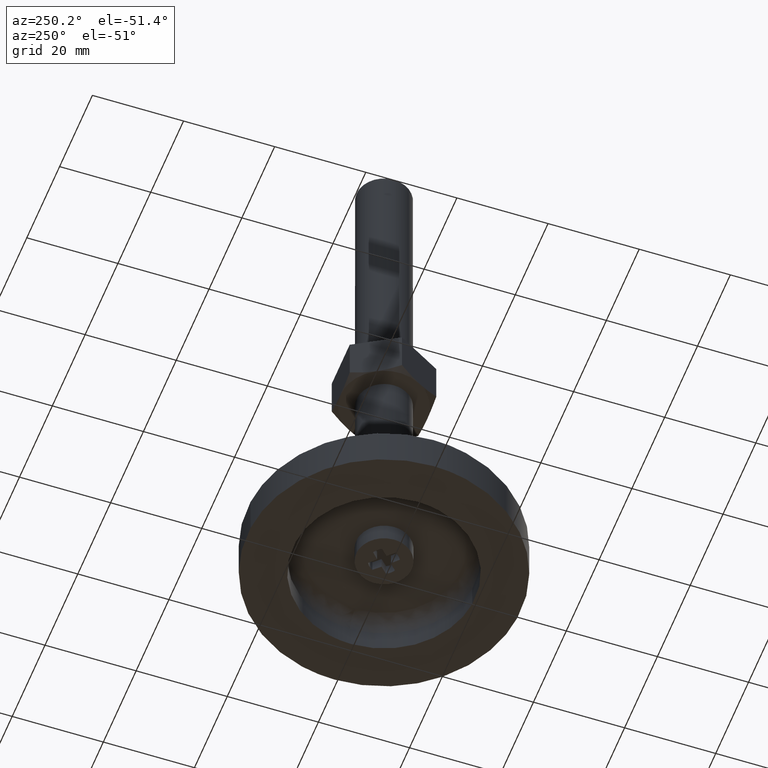
[diagram: clean part render]
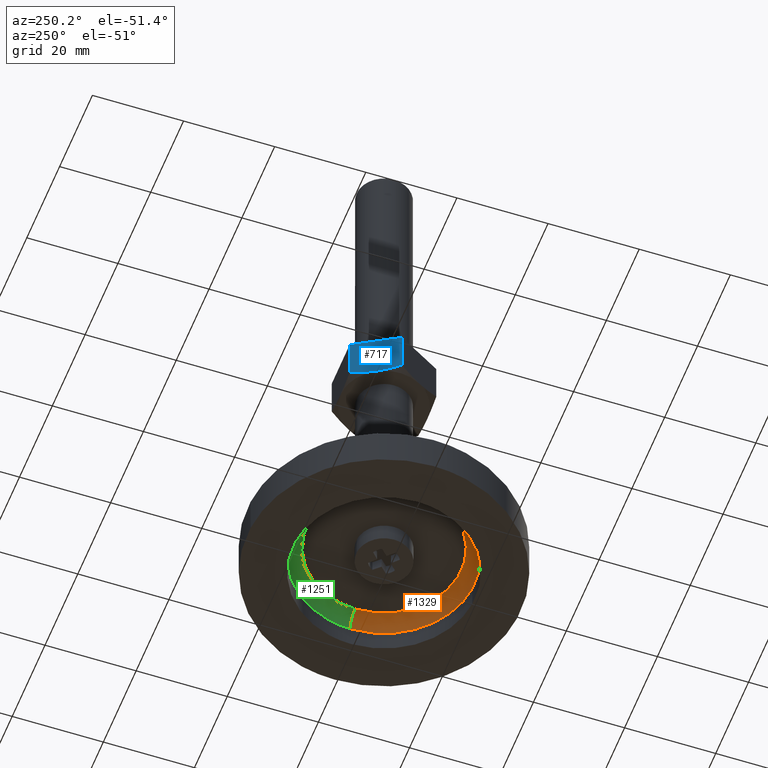
[diagram: same view with three faces highlighted in distinct colors, each labeled with its STEP entity id]
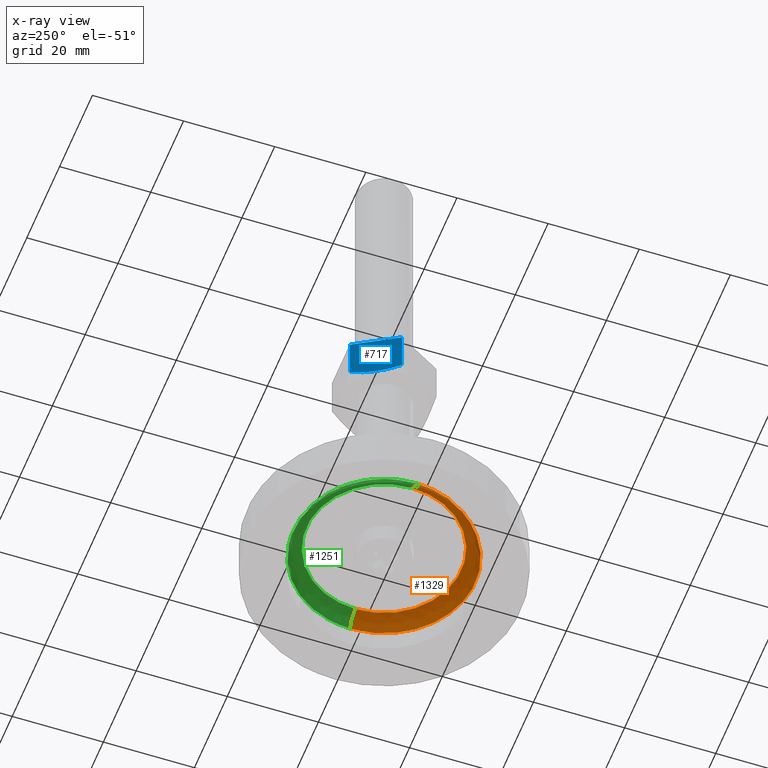
[diagram: x-ray of the same camera — body ghosted, the three highlighted faces saturated]
A machine part, auxiliary view with three faces highlighted in distinct colors.
The next image is the same camera in x-ray (body ghosted, the three faces saturated) — at least one of them is partly hidden behind the body in this view.
Their STEP definitions:

[orange] entity #1329 — the highlighted face is a freeform B-spline surface patch.
#1013=CARTESIAN_POINT('',(19.998420884075191,0.251320797757362,5.000000000000316));
#1014=VERTEX_POINT('',#1013);
#1037=CARTESIAN_POINT('',(1.569167552753556,-19.938347804950588,5.000000000000377));
#1038=VERTEX_POINT('',#1037);
#1044=CARTESIAN_POINT('',(20.0,0.0,5.0));
#1045=VERTEX_POINT('',#1044);
#1046=CARTESIAN_POINT('',(20.0,0.0,5.0));
#1047=CARTESIAN_POINT('',(19.999999999999794,-18.487823191310156,5.000000000000189));
#1048=CARTESIAN_POINT('',(1.569167552753556,-19.938347804950588,5.000000000000377));
#1056=(BOUNDED_CURVE()B_SPLINE_CURVE(2,(#1046,#1047,#1048),.UNSPECIFIED.,.F.,.U.)B_SPLINE_CURVE_WITH_KNOTS((3,3),(0.500000000000000,0.736331424111661),.UNSPECIFIED.)CURVE()GEOMETRIC_REPRESENTATION_ITEM()RATIONAL_B_SPLINE_CURVE((1.0,0.723120513940673,0.969723613862991))REPRESENTATION_ITEM(''));
#1057=EDGE_CURVE('',#1045,#1038,#1056,.T.);
#1059=CARTESIAN_POINT('',(19.998420884075188,0.251320797757362,5.000000000000316));
#1060=CARTESIAN_POINT('',(20.0,0.125665359882956,5.0));
#1061=CARTESIAN_POINT('',(20.0,0.0,5.0));
#1069=(BOUNDED_CURVE()B_SPLINE_CURVE(2,(#1059,#1060,#1061),.UNSPECIFIED.,.F.,.U.)B_SPLINE_CURVE_WITH_KNOTS((3,3),(0.497784295920934,0.500000000000000),.UNSPECIFIED.)CURVE()GEOMETRIC_REPRESENTATION_ITEM()RATIONAL_B_SPLINE_CURVE((0.994854295642184,0.997404141201377,1.0))REPRESENTATION_ITEM(''));
#1070=EDGE_CURVE('',#1014,#1045,#1069,.T.);
#1108=CARTESIAN_POINT('',(-19.998420884075191,-0.251320797757367,5.000000000000316));
#1109=VERTEX_POINT('',#1108);
#1123=CARTESIAN_POINT('',(1.569167552753556,-19.938347804950588,5.000000000000377));
#1124=CARTESIAN_POINT('',(0.785794925927531,-19.999999999994927,5.000000000000376));
#1125=CARTESIAN_POINT('',(-3.971997E-013,-19.999999999995030,5.000000000000374));
#1126=CARTESIAN_POINT('',(-19.750238598057273,-19.999999999997602,5.000000000000343));
#1127=CARTESIAN_POINT('',(-19.998420884075188,-0.251320797757367,5.000000000000316));
#1135=(BOUNDED_CURVE()B_SPLINE_CURVE(2,(#1123,#1124,#1125,#1126,#1127),.UNSPECIFIED.,.F.,.U.)B_SPLINE_CURVE_WITH_KNOTS((3,2,3),(0.736331424111661,0.750000000000000,0.997784295920934),.UNSPECIFIED.)CURVE()GEOMETRIC_REPRESENTATION_ITEM()RATIONAL_B_SPLINE_CURVE((0.969723613862991,0.983986267245874,1.0,0.709702639985171,0.994854295642184))REPRESENTATION_ITEM(''));
#1136=EDGE_CURVE('',#1038,#1109,#1135,.T.);
#1177=CARTESIAN_POINT('',(16.998657756280039,0.213622678592061,8.0));
#1178=VERTEX_POINT('',#1177);
#1179=CARTESIAN_POINT('',(16.998657756280046,0.213622678592061,8.0));
#1180=CARTESIAN_POINT('',(19.998420884072200,0.251320797969439,7.999999995177984));
#1181=CARTESIAN_POINT('',(19.998420884075180,0.251320797757362,5.000000000000316));
#1189=(BOUNDED_CURVE()B_SPLINE_CURVE(2,(#1179,#1180,#1181),.UNSPECIFIED.,.F.,.U.)B_SPLINE_CURVE_WITH_KNOTS((3,3),(-1.725134641633497,-0.274865356718293),.UNSPECIFIED.)CURVE()GEOMETRIC_REPRESENTATION_ITEM()RATIONAL_B_SPLINE_CURVE((0.883342149064947,0.624617224421656,0.883342149653021))REPRESENTATION_ITEM(''));
#1190=EDGE_CURVE('',#1178,#1014,#1189,.T.);
#1221=CARTESIAN_POINT('',(-16.998657756280039,-0.213622678592057,8.0));
#1222=VERTEX_POINT('',#1221);
#1236=CARTESIAN_POINT('',(-16.998657756280036,-0.213622678592057,8.0));
#1237=CARTESIAN_POINT('',(-19.998420884072207,-0.251320797969439,7.999999995177987));
#1238=CARTESIAN_POINT('',(-19.998420884075184,-0.251320797757367,5.000000000000316));
#1246=(BOUNDED_CURVE()B_SPLINE_CURVE(2,(#1236,#1237,#1238),.UNSPECIFIED.,.F.,.U.)B_SPLINE_CURVE_WITH_KNOTS((3,3),(-1.725134641633498,-0.274865356718294),.UNSPECIFIED.)CURVE()GEOMETRIC_REPRESENTATION_ITEM()RATIONAL_B_SPLINE_CURVE((0.883342149064947,0.624617224421656,0.883342149653021))REPRESENTATION_ITEM(''));
#1247=EDGE_CURVE('',#1222,#1109,#1246,.T.);
#1252=CARTESIAN_POINT('',(16.784163988320593,0.680396644449088,7.992738096477130));
#1253=CARTESIAN_POINT('',(16.787096264881157,0.447065772706241,7.992738096477130));
#1254=CARTESIAN_POINT('',(17.001064154956079,-16.579061635441072,7.992738096477130));
#1255=CARTESIAN_POINT('',(0.211001259757513,-16.790062895198570,7.992738096477130));
#1256=CARTESIAN_POINT('',(-16.579061635441057,-17.001064154956079,7.992738096477130));
#1257=CARTESIAN_POINT('',(-16.793029525512367,0.025063252902595,7.992738096477130));
#1258=CARTESIAN_POINT('',(-16.795961802069385,0.258394124363486,7.992738096477130));
#1259=CARTESIAN_POINT('',(20.223906212774583,0.819836956693232,8.232611430909151));
#1260=CARTESIAN_POINT('',(20.227439429334677,0.538687316475469,8.232611430909152));
#1261=CARTESIAN_POINT('',(20.485257843432137,-19.976770236771166,8.232611430909152));
#1262=CARTESIAN_POINT('',(0.254243803330488,-20.231014040101652,8.232611430909151));
#1263=CARTESIAN_POINT('',(-19.976770236771166,-20.485257843432137,8.232611430909152));
#1264=CARTESIAN_POINT('',(-20.234588650864271,0.030199709466724,8.232611430909151));
#1265=CARTESIAN_POINT('',(-20.238121867420091,0.311349349344748,8.232611430909152));
#1266=CARTESIAN_POINT('',(19.984135989565647,0.810117148460680,4.791388588279428));
#1267=CARTESIAN_POINT('',(19.987627317080452,0.532300757086187,4.791388588279428));
#1268=CARTESIAN_POINT('',(20.242389092265274,-19.739930003817619,4.791388588279428));
#1269=CARTESIAN_POINT('',(0.251229544223830,-19.991159548041452,4.791388588279428));
#1270=CARTESIAN_POINT('',(-19.739930003817619,-20.242389092265274,4.791388588279428));
#1271=CARTESIAN_POINT('',(-19.994691778998138,0.029841668294880,4.791388588279428));
#1272=CARTESIAN_POINT('',(-19.998183106508716,0.307658059333662,4.791388588279428));
#1280=(BOUNDED_SURFACE()B_SPLINE_SURFACE(2,2,((#1252,#1259,#1266),(#1253,#1260,#1267),(#1254,#1261,#1268),(#1255,#1262,#1269),(#1256,#1263,#1270),(#1257,#1264,#1271),(#1258,#1265,#1272)),.UNSPECIFIED.,.F.,.F.,.U.)B_SPLINE_SURFACE_WITH_KNOTS((3,1,2,1,3),(3,3),(0.0,0.662501062002794,33.787554126393779,66.912607190784755,67.575108251972807),(0.0,5.468189979762794),.UNSPECIFIED.)GEOMETRIC_REPRESENTATION_ITEM()RATIONAL_B_SPLINE_SURFACE(((0.921146729416461,0.604479481459989,0.921146741249095),(0.915813262253729,0.600979527150914,0.915813274017851),(0.643806437242182,0.422481857576905,0.643806445512228),(0.910479795090997,0.597479572841838,0.910479806786608),(0.643806437242182,0.422481857576905,0.643806445512228),(0.915813262247170,0.600979527146609,0.915813274011292),(0.921146729403343,0.604479481451381,0.921146741235977)))REPRESENTATION_ITEM('')SURFACE());
#1281=ORIENTED_EDGE('',*,*,#1136,.T.);
#1282=ORIENTED_EDGE('',*,*,#1247,.F.);
#1283=CARTESIAN_POINT('',(17.0,0.0,8.0));
#1284=VERTEX_POINT('',#1283);
#1285=CARTESIAN_POINT('',(17.0,0.0,8.0));
#1286=CARTESIAN_POINT('',(17.000139436908452,-1.108192906138005,7.999999999999995));
#1287=CARTESIAN_POINT('',(16.806283737882620,-3.082113008185723,8.000000000000007));
#1288=CARTESIAN_POINT('',(16.106522939235941,-5.591278196743474,8.000000000000007));
#1289=CARTESIAN_POINT('',(15.126395373659850,-7.888138709253417,7.999999999999980));
#1290=CARTESIAN_POINT('',(13.860626282431010,-9.966778980738532,8.000000000000005));
#1291=CARTESIAN_POINT('',(11.991418760882020,-12.159781957063769,8.000000000000036));
#1292=CARTESIAN_POINT('',(9.836189556051210,-13.974881559590820,7.999999999999905));
#1293=CARTESIAN_POINT('',(7.608038621683763,-15.258506107667840,8.000000000000222));
#1294=CARTESIAN_POINT('',(5.524650213408640,-16.118011658156611,7.999999999999830));
#1295=CARTESIAN_POINT('',(3.286619278757819,-16.750014890639829,8.000000000000252));
#1296=CARTESIAN_POINT('',(0.939297754841939,-17.031466534363130,7.999999999999651));
#1297=CARTESIAN_POINT('',(-1.487614867965952,-16.979911831448032,8.000000000000224));
#1298=CARTESIAN_POINT('',(-3.754837588813800,-16.645408954586401,7.999999999999942));
#1299=CARTESIAN_POINT('',(-6.379242660341415,-15.844487495338649,7.999999999999692));
#1300=CARTESIAN_POINT('',(-8.555871013651283,-14.754368438731730,8.000000000000679));
#1301=CARTESIAN_POINT('',(-10.699211137213670,-13.282405341217560,7.999999999999417));
#1302=CARTESIAN_POINT('',(-12.395246435862891,-11.735897478161700,8.000000000000332));
#1303=CARTESIAN_POINT('',(-14.240105055888661,-9.434220375885243,7.999999999999798));
#1304=CARTESIAN_POINT('',(-15.594014524220780,-6.999980612262529,8.000000000000503));
#1305=CARTESIAN_POINT('',(-16.688278587353029,-3.776856943495612,7.999999999998816));
#1306=CARTESIAN_POINT('',(-16.981983246235721,-1.564155911211339,8.000000000001952));
#1307=CARTESIAN_POINT('',(-16.998657756280039,-0.213622678592057,8.0));
#1308=B_SPLINE_CURVE_WITH_KNOTS('',3,(#1285,#1286,#1287,#1288,#1289,#1290,#1291,#1292,#1293,#1294,#1295,#1296,#1297,#1298,#1299,#1300,#1301,#1302,#1303,#1304,#1305,#1306,#1307),.UNSPECIFIED.,.F.,.U.,(4,1,1,1,1,1,1,1,1,1,1,1,1,1,1,1,1,1,1,1,4),(0.000000232260433,3.324560314812274,5.921914546155591,7.792006181880737,10.804929750579440,13.194491025955870,16.415208231103389,19.220336471628212,20.882631315009760,23.168292284748919,26.181244907533198,27.947305495157138,30.440824413000609,33.038117698147673,36.154960739121947,37.713364142081609,40.830192462621227,43.011980459283564,46.544387155995807,49.141698472185539,53.193529592743857),.UNSPECIFIED.);
#1309=EDGE_CURVE('',#1284,#1222,#1308,.T.);
#1310=ORIENTED_EDGE('',*,*,#1309,.F.);
#1311=CARTESIAN_POINT('',(16.998657756280039,0.213622678592061,8.0));
#1312=CARTESIAN_POINT('',(17.000000002410811,0.106815556149690,8.0));
#1313=CARTESIAN_POINT('',(17.0,0.0,8.0));
#1321=(BOUNDED_CURVE()B_SPLINE_CURVE(2,(#1311,#1312,#1313),.UNSPECIFIED.,.F.,.U.)B_SPLINE_CURVE_WITH_KNOTS((3,3),(0.497784295916405,0.500000000000000),.UNSPECIFIED.)CURVE()GEOMETRIC_REPRESENTATION_ITEM()RATIONAL_B_SPLINE_CURVE((0.994854295631762,0.997404141196072,1.0))REPRESENTATION_ITEM(''));
#1322=EDGE_CURVE('',#1178,#1284,#1321,.T.);
#1323=ORIENTED_EDGE('',*,*,#1322,.F.);
#1324=ORIENTED_EDGE('',*,*,#1190,.T.);
#1325=ORIENTED_EDGE('',*,*,#1070,.T.);
#1326=ORIENTED_EDGE('',*,*,#1057,.T.);
#1327=EDGE_LOOP('',(#1281,#1282,#1310,#1323,#1324,#1325,#1326));
#1328=FACE_OUTER_BOUND('',#1327,.T.);
#1329=ADVANCED_FACE('',(#1328),#1280,.F.);

[blue] entity #717 — the highlighted face is a freeform B-spline surface patch.
#194=CARTESIAN_POINT('',(-8.227240917976140,4.750000142069551,55.0));
#195=VERTEX_POINT('',#194);
#305=CARTESIAN_POINT('',(-5.484827000000000,9.500000000000108,55.848505520440000));
#306=VERTEX_POINT('',#305);
#321=CARTESIAN_POINT('',(-5.484827000000000,9.500000000000108,55.848505520440000));
#322=CARTESIAN_POINT('',(-5.932611144710593,8.724415173137592,55.589977235550599));
#323=CARTESIAN_POINT('',(-6.383660003523334,7.943175696034374,55.376903081825958));
#324=CARTESIAN_POINT('',(-7.067288495858541,6.759096509379010,55.155520413757330));
#325=CARTESIAN_POINT('',(-7.296343347196076,6.362361901164022,55.098136878830132));
#326=CARTESIAN_POINT('',(-7.757120668835380,5.564272233525692,55.020510672923990));
#327=CARTESIAN_POINT('',(-7.988845444250901,5.162913181528529,55.000300095702627));
#328=CARTESIAN_POINT('',(-8.223747173436712,4.756051484632068,55.000000850123591));
#329=CARTESIAN_POINT('',(-8.225493981276436,4.753025924946808,54.999999745958483));
#330=CARTESIAN_POINT('',(-8.227240917977483,4.750000142067210,54.999999762487597));
#331=B_SPLINE_CURVE_WITH_KNOTS('',3,(#321,#322,#323,#324,#325,#326,#327,#328,#329,#330),.UNSPECIFIED.,.F.,.U.,(4,2,2,2,4),(0.0,0.250000000000000,0.375000000000000,0.500000000000000,0.500936434345609),.UNSPECIFIED.);
#332=EDGE_CURVE('',#306,#195,#331,.T.);
#541=CARTESIAN_POINT('',(-10.969654999999999,7.479928E-016,55.848505615153002));
#542=VERTEX_POINT('',#541);
#543=CARTESIAN_POINT('',(-8.227240917976140,4.750000142069551,55.0));
#544=CARTESIAN_POINT('',(-8.342088961295458,4.551077511946305,55.000000849154112));
#545=CARTESIAN_POINT('',(-8.457493953636805,4.351190217897555,55.004845666648748));
#546=CARTESIAN_POINT('',(-8.689020001256656,3.950175372511586,55.024220156787280));
#547=CARTESIAN_POINT('',(-8.805251567163483,3.748856411166793,55.038873456895402));
#548=CARTESIAN_POINT('',(-9.152783160065761,3.146914083609458,55.096876893532617));
#549=CARTESIAN_POINT('',(-9.382917362980763,2.748309983773956,55.154303399235019));
#550=CARTESIAN_POINT('',(-10.069222746897561,1.559594285267157,55.376053544231290));
#551=CARTESIAN_POINT('',(-10.521312667914209,0.776551635678468,55.589655049033823));
#552=CARTESIAN_POINT('',(-10.969655000000030,-4.500579E-014,55.848505615152682));
#553=B_SPLINE_CURVE_WITH_KNOTS('',3,(#543,#544,#545,#546,#547,#548,#549,#550,#551,#552),.UNSPECIFIED.,.F.,.U.,(4,2,2,2,4),(0.500936434345609,0.562500000000000,0.625000000000000,0.750000000000000,1.0),.UNSPECIFIED.);
#554=EDGE_CURVE('',#195,#542,#553,.T.);
#580=CARTESIAN_POINT('',(-10.969654999999999,0.0,65.0));
#581=VERTEX_POINT('',#580);
#608=CARTESIAN_POINT('',(-5.484827000000000,9.500000000000108,65.0));
#609=VERTEX_POINT('',#608);
#615=CARTESIAN_POINT('',(-10.969654999999999,0.0,65.0));
#616=CARTESIAN_POINT('',(-5.484827000000000,9.500000000000108,65.0));
#617=QUASI_UNIFORM_CURVE('',1,(#615,#616),.UNSPECIFIED.,.F.,.U.);
#618=EDGE_CURVE('',#581,#609,#617,.T.);
#692=CARTESIAN_POINT('',(-5.484827000000000,9.500000000000108,65.0));
#693=CARTESIAN_POINT('',(-5.484827000000000,9.500000000000108,55.848505520440000));
#694=QUASI_UNIFORM_CURVE('',1,(#692,#693),.UNSPECIFIED.,.F.,.U.);
#695=EDGE_CURVE('',#609,#306,#694,.T.);
#701=CARTESIAN_POINT('',(-5.210859852030658,9.974524981587273,54.500500019381938));
#702=CARTESIAN_POINT('',(-11.243622295083890,-0.474525236397018,54.500500019381938));
#703=CARTESIAN_POINT('',(-5.210859852030658,9.974524981587273,65.499500248838970));
#704=CARTESIAN_POINT('',(-11.243622295083890,-0.474525236397018,65.499500248838970));
#705=B_SPLINE_SURFACE_WITH_KNOTS('',1,1,((#701,#703),(#702,#704)),.UNSPECIFIED.,.F.,.F.,.U.,(2,2),(2,2),(0.0,12.065524155720350),(0.0,10.999000229457030),.UNSPECIFIED.);
#706=ORIENTED_EDGE('',*,*,#695,.T.);
#707=ORIENTED_EDGE('',*,*,#332,.T.);
#708=ORIENTED_EDGE('',*,*,#554,.T.);
#709=CARTESIAN_POINT('',(-10.969654999999999,0.0,65.0));
#710=CARTESIAN_POINT('',(-10.969654999999999,7.479928E-016,55.848505615153002));
#711=QUASI_UNIFORM_CURVE('',1,(#709,#710),.UNSPECIFIED.,.F.,.U.);
#712=EDGE_CURVE('',#581,#542,#711,.T.);
#713=ORIENTED_EDGE('',*,*,#712,.F.);
#714=ORIENTED_EDGE('',*,*,#618,.T.);
#715=EDGE_LOOP('',(#706,#707,#708,#713,#714));
#716=FACE_OUTER_BOUND('',#715,.T.);
#717=ADVANCED_FACE('',(#716),#705,.T.);

[green] entity #1251 — the highlighted face is a freeform B-spline surface patch.
#1011=CARTESIAN_POINT('',(-1.569167552753556,19.938347804950588,5.000000000000377));
#1012=VERTEX_POINT('',#1011);
#1013=CARTESIAN_POINT('',(19.998420884075191,0.251320797757362,5.000000000000316));
#1014=VERTEX_POINT('',#1013);
#1015=CARTESIAN_POINT('',(-1.569167552753556,19.938347804950588,5.000000000000377));
#1016=CARTESIAN_POINT('',(-0.785794925927533,19.999999999994916,5.000000000000375));
#1017=CARTESIAN_POINT('',(3.942101E-013,19.999999999995019,5.000000000000373));
#1018=CARTESIAN_POINT('',(19.750238598057273,19.999999999997602,5.000000000000343));
#1019=CARTESIAN_POINT('',(19.998420884075188,0.251320797757362,5.000000000000316));
#1027=(BOUNDED_CURVE()B_SPLINE_CURVE(2,(#1015,#1016,#1017,#1018,#1019),.UNSPECIFIED.,.F.,.U.)B_SPLINE_CURVE_WITH_KNOTS((3,2,3),(0.236331424111661,0.250000000000000,0.497784295920934),.UNSPECIFIED.)CURVE()GEOMETRIC_REPRESENTATION_ITEM()RATIONAL_B_SPLINE_CURVE((0.969723613862991,0.983986267245874,1.0,0.709702639985171,0.994854295642184))REPRESENTATION_ITEM(''));
#1028=EDGE_CURVE('',#1012,#1014,#1027,.T.);
#1093=CARTESIAN_POINT('',(-20.0,0.0,5.0));
#1094=VERTEX_POINT('',#1093);
#1095=CARTESIAN_POINT('',(-20.0,0.0,5.0));
#1096=CARTESIAN_POINT('',(-19.999999999999794,18.487823191310156,5.000000000000187));
#1097=CARTESIAN_POINT('',(-1.569167552753556,19.938347804950588,5.000000000000377));
#1105=(BOUNDED_CURVE()B_SPLINE_CURVE(2,(#1095,#1096,#1097),.UNSPECIFIED.,.F.,.U.)B_SPLINE_CURVE_WITH_KNOTS((3,3),(0.0,0.236331424111661),.UNSPECIFIED.)CURVE()GEOMETRIC_REPRESENTATION_ITEM()RATIONAL_B_SPLINE_CURVE((1.0,0.723120513940673,0.969723613862991))REPRESENTATION_ITEM(''));
#1106=EDGE_CURVE('',#1094,#1012,#1105,.T.);
#1108=CARTESIAN_POINT('',(-19.998420884075191,-0.251320797757367,5.000000000000316));
#1109=VERTEX_POINT('',#1108);
#1110=CARTESIAN_POINT('',(-19.998420884075188,-0.251320797757367,5.000000000000316));
#1111=CARTESIAN_POINT('',(-20.0,-0.125665359882956,5.0));
#1112=CARTESIAN_POINT('',(-20.0,0.0,5.0));
#1120=(BOUNDED_CURVE()B_SPLINE_CURVE(2,(#1110,#1111,#1112),.UNSPECIFIED.,.F.,.U.)B_SPLINE_CURVE_WITH_KNOTS((3,3),(0.997784295920934,1.0),.UNSPECIFIED.)CURVE()GEOMETRIC_REPRESENTATION_ITEM()RATIONAL_B_SPLINE_CURVE((0.994854295642184,0.997404141201377,1.0))REPRESENTATION_ITEM(''));
#1121=EDGE_CURVE('',#1109,#1094,#1120,.T.);
#1145=CARTESIAN_POINT('',(-16.784163988320593,-0.680396644449069,7.992738096477130));
#1146=CARTESIAN_POINT('',(-16.787096264881153,-0.447065772706233,7.992738096477130));
#1147=CARTESIAN_POINT('',(-17.001064154956094,16.579061635441057,7.992738096477130));
#1148=CARTESIAN_POINT('',(-0.211001259757515,16.790062895198570,7.992738096477130));
#1149=CARTESIAN_POINT('',(16.579061635441057,17.001064154956094,7.992738096477130));
#1150=CARTESIAN_POINT('',(16.793029525512363,-0.025063252902597,7.992738096477130));
#1151=CARTESIAN_POINT('',(16.795961802069392,-0.258394124363493,7.992738096477129));
#1152=CARTESIAN_POINT('',(-20.223906212774590,-0.819836956693209,8.232611430909149));
#1153=CARTESIAN_POINT('',(-20.227439429334680,-0.538687316475459,8.232611430909151));
#1154=CARTESIAN_POINT('',(-20.485257843432141,19.976770236771166,8.232611430909152));
#1155=CARTESIAN_POINT('',(-0.254243803330490,20.231014040101652,8.232611430909151));
#1156=CARTESIAN_POINT('',(19.976770236771159,20.485257843432141,8.232611430909152));
#1157=CARTESIAN_POINT('',(20.234588650864268,-0.030199709466727,8.232611430909151));
#1158=CARTESIAN_POINT('',(20.238121867420098,-0.311349349344756,8.232611430909149));
#1159=CARTESIAN_POINT('',(-19.984135989565651,-0.810117148460658,4.791388588279427));
#1160=CARTESIAN_POINT('',(-19.987627317080459,-0.532300757086177,4.791388588279428));
#1161=CARTESIAN_POINT('',(-20.242389092265292,19.739930003817619,4.791388588279428));
#1162=CARTESIAN_POINT('',(-0.251229544223833,19.991159548041452,4.791388588279428));
#1163=CARTESIAN_POINT('',(19.739930003817619,20.242389092265292,4.791388588279428));
#1164=CARTESIAN_POINT('',(19.994691778998135,-0.029841668294883,4.791388588279428));
#1165=CARTESIAN_POINT('',(19.998183106508723,-0.307658059333670,4.791388588279429));
#1173=(BOUNDED_SURFACE()B_SPLINE_SURFACE(2,2,((#1145,#1152,#1159),(#1146,#1153,#1160),(#1147,#1154,#1161),(#1148,#1155,#1162),(#1149,#1156,#1163),(#1150,#1157,#1164),(#1151,#1158,#1165)),.UNSPECIFIED.,.F.,.F.,.U.)B_SPLINE_SURFACE_WITH_KNOTS((3,1,2,1,3),(3,3),(0.0,0.662501062002764,33.787554126393772,66.912607190784755,67.575108251972821),(0.0,5.468189979762788),.UNSPECIFIED.)GEOMETRIC_REPRESENTATION_ITEM()RATIONAL_B_SPLINE_SURFACE(((0.921146729416461,0.604479481459989,0.921146741249094),(0.915813262253729,0.600979527150914,0.915813274017851),(0.643806437242182,0.422481857576905,0.643806445512228),(0.910479795090997,0.597479572841838,0.910479806786608),(0.643806437242182,0.422481857576905,0.643806445512228),(0.915813262247170,0.600979527146610,0.915813274011292),(0.921146729403343,0.604479481451381,0.921146741235977)))REPRESENTATION_ITEM('')SURFACE());
#1174=ORIENTED_EDGE('',*,*,#1121,.T.);
#1175=ORIENTED_EDGE('',*,*,#1106,.T.);
#1176=ORIENTED_EDGE('',*,*,#1028,.T.);
#1177=CARTESIAN_POINT('',(16.998657756280039,0.213622678592061,8.0));
#1178=VERTEX_POINT('',#1177);
#1179=CARTESIAN_POINT('',(16.998657756280046,0.213622678592061,8.0));
#1180=CARTESIAN_POINT('',(19.998420884072200,0.251320797969439,7.999999995177984));
#1181=CARTESIAN_POINT('',(19.998420884075180,0.251320797757362,5.000000000000316));
#1189=(BOUNDED_CURVE()B_SPLINE_CURVE(2,(#1179,#1180,#1181),.UNSPECIFIED.,.F.,.U.)B_SPLINE_CURVE_WITH_KNOTS((3,3),(-1.725134641633497,-0.274865356718293),.UNSPECIFIED.)CURVE()GEOMETRIC_REPRESENTATION_ITEM()RATIONAL_B_SPLINE_CURVE((0.883342149064947,0.624617224421656,0.883342149653021))REPRESENTATION_ITEM(''));
#1190=EDGE_CURVE('',#1178,#1014,#1189,.T.);
#1191=ORIENTED_EDGE('',*,*,#1190,.F.);
#1192=CARTESIAN_POINT('',(-17.0,0.0,8.0));
#1193=VERTEX_POINT('',#1192);
#1194=CARTESIAN_POINT('',(-17.0,0.0,8.0));
#1195=CARTESIAN_POINT('',(-17.000105604672711,1.038938880135991,8.000000000000009));
#1196=CARTESIAN_POINT('',(-16.828025025385649,2.908967571575650,7.999999999999919));
#1197=CARTESIAN_POINT('',(-16.210931219974182,5.260018905645230,8.000000000000082));
#1198=CARTESIAN_POINT('',(-15.377275774536949,7.353887868896937,7.999999999999988));
#1199=CARTESIAN_POINT('',(-14.353755285425850,9.208934029262272,7.999999999999948));
#1200=CARTESIAN_POINT('',(-12.796230802875881,11.293580345176570,8.000000000000092));
#1201=CARTESIAN_POINT('',(-11.059292150451460,12.999216577709410,7.999999999999933));
#1202=CARTESIAN_POINT('',(-8.890403058736240,14.559163793837429,8.000000000000046));
#1203=CARTESIAN_POINT('',(-6.609464182957949,15.746463777943321,8.000000000000016));
#1204=CARTESIAN_POINT('',(-4.197493562023425,16.532086340391029,8.000000000000140));
#1205=CARTESIAN_POINT('',(-1.942719425949241,16.929159089066950,7.999999999999769));
#1206=CARTESIAN_POINT('',(0.586208772718293,17.069043883565289,8.000000000000226));
#1207=CARTESIAN_POINT('',(3.112558321656771,16.790388543121789,7.999999999999975));
#1208=CARTESIAN_POINT('',(5.886155361099678,16.017409839924088,7.999999999999903));
#1209=CARTESIAN_POINT('',(7.853591696284147,15.135262488287641,8.000000000000226));
#1210=CARTESIAN_POINT('',(9.918206481521120,13.861111110866331,7.999999999999700));
#1211=CARTESIAN_POINT('',(11.708572758550950,12.427739223383330,8.000000000000183));
#1212=CARTESIAN_POINT('',(13.360222904931449,10.595758974578070,8.000000000000044));
#1213=CARTESIAN_POINT('',(14.807912868469600,8.476386480140745,7.999999999999454));
#1214=CARTESIAN_POINT('',(15.887658645071280,6.255848329929207,8.000000000001419));
#1215=CARTESIAN_POINT('',(16.753102280402899,3.362126566318347,7.999999999997302));
#1216=CARTESIAN_POINT('',(16.984065205234391,1.391004950765484,8.000000000002761));
#1217=CARTESIAN_POINT('',(16.998657756280039,0.213622678592061,8.0));
#1218=B_SPLINE_CURVE_WITH_KNOTS('',3,(#1194,#1195,#1196,#1197,#1198,#1199,#1200,#1201,#1202,#1203,#1204,#1205,#1206,#1207,#1208,#1209,#1210,#1211,#1212,#1213,#1214,#1215,#1216,#1217),.UNSPECIFIED.,.F.,.U.,(4,1,1,1,1,1,1,1,1,1,1,1,1,1,1,1,1,1,1,1,1,4),(0.000000232275013,3.116805700107406,5.610197208325843,7.272512623746181,9.869882290466464,11.947761957658591,15.064589535736870,17.142474158140221,19.947597249655651,22.752768426309579,24.726694496001009,26.804477417362200,30.336870517336411,32.310857669665133,35.427691956956117,36.778314236782649,39.583464325544291,42.284717784370919,44.154816660742092,47.271646587965918,49.661159075049497,53.193529592743893),.UNSPECIFIED.);
#1219=EDGE_CURVE('',#1193,#1178,#1218,.T.);
#1220=ORIENTED_EDGE('',*,*,#1219,.F.);
#1221=CARTESIAN_POINT('',(-16.998657756280039,-0.213622678592057,8.0));
#1222=VERTEX_POINT('',#1221);
#1223=CARTESIAN_POINT('',(-16.998657756280039,-0.213622678592056,8.0));
#1224=CARTESIAN_POINT('',(-17.000000002410811,-0.106815556149688,8.0));
#1225=CARTESIAN_POINT('',(-17.0,0.0,8.0));
#1233=(BOUNDED_CURVE()B_SPLINE_CURVE(2,(#1223,#1224,#1225),.UNSPECIFIED.,.F.,.U.)B_SPLINE_CURVE_WITH_KNOTS((3,3),(0.997784295916405,1.0),.UNSPECIFIED.)CURVE()GEOMETRIC_REPRESENTATION_ITEM()RATIONAL_B_SPLINE_CURVE((0.994854295631762,0.997404141196072,1.0))REPRESENTATION_ITEM(''));
#1234=EDGE_CURVE('',#1222,#1193,#1233,.T.);
#1235=ORIENTED_EDGE('',*,*,#1234,.F.);
#1236=CARTESIAN_POINT('',(-16.998657756280036,-0.213622678592057,8.0));
#1237=CARTESIAN_POINT('',(-19.998420884072207,-0.251320797969439,7.999999995177987));
#1238=CARTESIAN_POINT('',(-19.998420884075184,-0.251320797757367,5.000000000000316));
#1246=(BOUNDED_CURVE()B_SPLINE_CURVE(2,(#1236,#1237,#1238),.UNSPECIFIED.,.F.,.U.)B_SPLINE_CURVE_WITH_KNOTS((3,3),(-1.725134641633498,-0.274865356718294),.UNSPECIFIED.)CURVE()GEOMETRIC_REPRESENTATION_ITEM()RATIONAL_B_SPLINE_CURVE((0.883342149064947,0.624617224421656,0.883342149653021))REPRESENTATION_ITEM(''));
#1247=EDGE_CURVE('',#1222,#1109,#1246,.T.);
#1248=ORIENTED_EDGE('',*,*,#1247,.T.);
#1249=EDGE_LOOP('',(#1174,#1175,#1176,#1191,#1220,#1235,#1248));
#1250=FACE_OUTER_BOUND('',#1249,.T.);
#1251=ADVANCED_FACE('',(#1250),#1173,.F.);